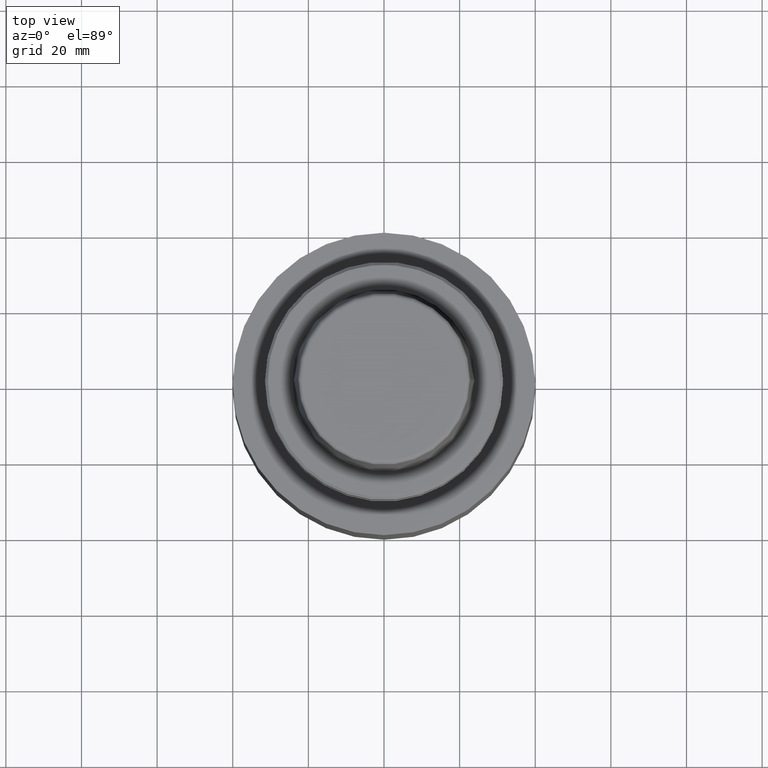
[diagram: clean part render]
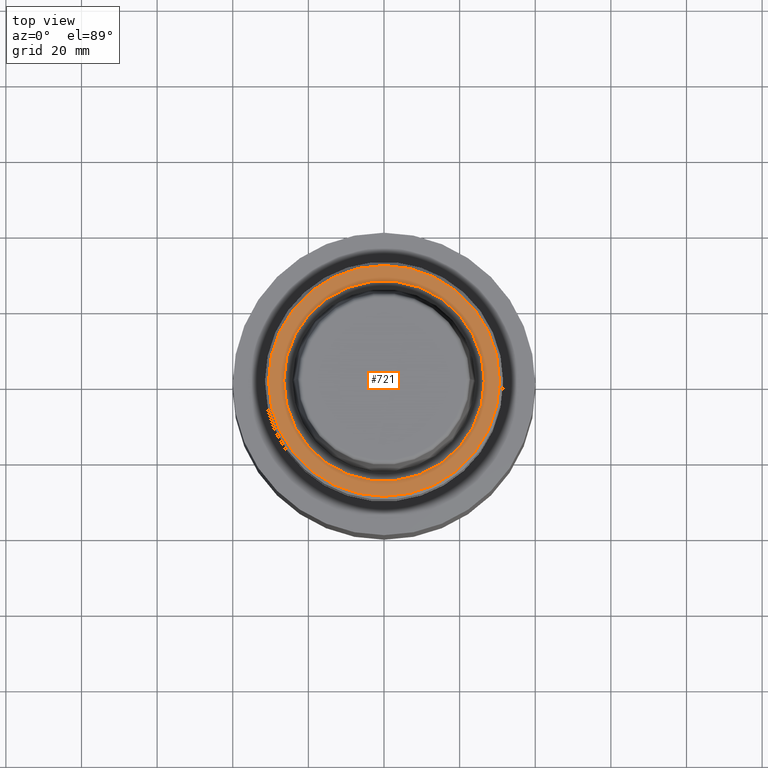
[diagram: same view with one face highlighted and labeled with its STEP entity id]
A machine part, top view. The second image highlights one B-rep face of the part: STEP entity #721.
In plain terms, the highlighted planar face has unit normal (0, 0, -1).
Its self-contained STEP definition (entity closure, byte-faithful):
#5 = EDGE_CURVE ( 'NONE', #1339, #357, #314, .T. ) ;
#6 = CARTESIAN_POINT ( 'NONE',  ( -30.53431457505076100, 3.756694181974138600E-015, 0.0000000000000000000 ) ) ;
#40 = FACE_OUTER_BOUND ( 'NONE', #1269, .T. ) ;
#62 = CARTESIAN_POINT ( 'NONE',  ( 30.53431457505076100, 0.0000000000000000000, 0.0000000000000000000 ) ) ;
#71 = EDGE_LOOP ( 'NONE', ( #1196, #126 ) ) ;
#123 = AXIS2_PLACEMENT_3D ( 'NONE', #985, #1229, #1223 ) ;
#126 = ORIENTED_EDGE ( 'NONE', *, *, #5, .F. ) ;
#131 = AXIS2_PLACEMENT_3D ( 'NONE', #1117, #813, #727 ) ;
#158 = EDGE_CURVE ( 'NONE', #357, #1339, #1279, .T. ) ;
#159 = DIRECTION ( 'NONE',  ( 1.000000000000000000, 0.0000000000000000000, 0.0000000000000000000 ) ) ;
#180 = CARTESIAN_POINT ( 'NONE',  ( -26.52499999999999900, 3.248375634738354300E-015, 0.0000000000000000000 ) ) ;
#186 = DIRECTION ( 'NONE',  ( -0.0000000000000000000, -0.0000000000000000000, 1.000000000000000000 ) ) ;
#192 = ORIENTED_EDGE ( 'NONE', *, *, #508, .T. ) ;
#237 = CIRCLE ( 'NONE', #123, 30.53431457505076100 ) ;
#250 = DIRECTION ( 'NONE',  ( 1.000000000000000000, 0.0000000000000000000, 0.0000000000000000000 ) ) ;
#314 = CIRCLE ( 'NONE', #535, 26.52499999999999900 ) ;
#331 = DIRECTION ( 'NONE',  ( -0.0000000000000000000, -0.0000000000000000000, 1.000000000000000000 ) ) ;
#357 = VERTEX_POINT ( 'NONE', #600 ) ;
#393 = DIRECTION ( 'NONE',  ( -0.0000000000000000000, -0.0000000000000000000, 1.000000000000000000 ) ) ;
#446 = DIRECTION ( 'NONE',  ( 1.000000000000000000, 0.0000000000000000000, 0.0000000000000000000 ) ) ;
#502 = CARTESIAN_POINT ( 'NONE',  ( 0.0000000000000000000, 0.0000000000000000000, 0.0000000000000000000 ) ) ;
#508 = EDGE_CURVE ( 'NONE', #1108, #687, #569, .T. ) ;
#535 = AXIS2_PLACEMENT_3D ( 'NONE', #649, #331, #159 ) ;
#569 = CIRCLE ( 'NONE', #1188, 30.53431457505076100 ) ;
#600 = CARTESIAN_POINT ( 'NONE',  ( 26.52499999999999900, 0.0000000000000000000, 0.0000000000000000000 ) ) ;
#649 = CARTESIAN_POINT ( 'NONE',  ( 0.0000000000000000000, 0.0000000000000000000, 0.0000000000000000000 ) ) ;
#687 = VERTEX_POINT ( 'NONE', #62 ) ;
#721 = ADVANCED_FACE ( 'NONE', ( #1132, #40 ), #861, .F. ) ;
#722 = AXIS2_PLACEMENT_3D ( 'NONE', #800, #186, #446 ) ;
#727 = DIRECTION ( 'NONE',  ( -1.000000000000000000, 0.0000000000000000000, -0.0000000000000000000 ) ) ;
#800 = CARTESIAN_POINT ( 'NONE',  ( 0.0000000000000000000, 0.0000000000000000000, 0.0000000000000000000 ) ) ;
#813 = DIRECTION ( 'NONE',  ( 0.0000000000000000000, 0.0000000000000000000, -1.000000000000000000 ) ) ;
#861 = PLANE ( 'NONE',  #131 ) ;
#985 = CARTESIAN_POINT ( 'NONE',  ( 0.0000000000000000000, 0.0000000000000000000, 0.0000000000000000000 ) ) ;
#1061 = ORIENTED_EDGE ( 'NONE', *, *, #1068, .T. ) ;
#1068 = EDGE_CURVE ( 'NONE', #687, #1108, #237, .T. ) ;
#1108 = VERTEX_POINT ( 'NONE', #6 ) ;
#1117 = CARTESIAN_POINT ( 'NONE',  ( 0.0000000000000000000, 26.52499999999999900, -1.111307226797642000E-015 ) ) ;
#1132 = FACE_BOUND ( 'NONE', #71, .T. ) ;
#1188 = AXIS2_PLACEMENT_3D ( 'NONE', #502, #393, #250 ) ;
#1196 = ORIENTED_EDGE ( 'NONE', *, *, #158, .F. ) ;
#1223 = DIRECTION ( 'NONE',  ( 1.000000000000000000, 0.0000000000000000000, 0.0000000000000000000 ) ) ;
#1229 = DIRECTION ( 'NONE',  ( -0.0000000000000000000, -0.0000000000000000000, 1.000000000000000000 ) ) ;
#1269 = EDGE_LOOP ( 'NONE', ( #1061, #192 ) ) ;
#1279 = CIRCLE ( 'NONE', #722, 26.52499999999999900 ) ;
#1339 = VERTEX_POINT ( 'NONE', #180 ) ;